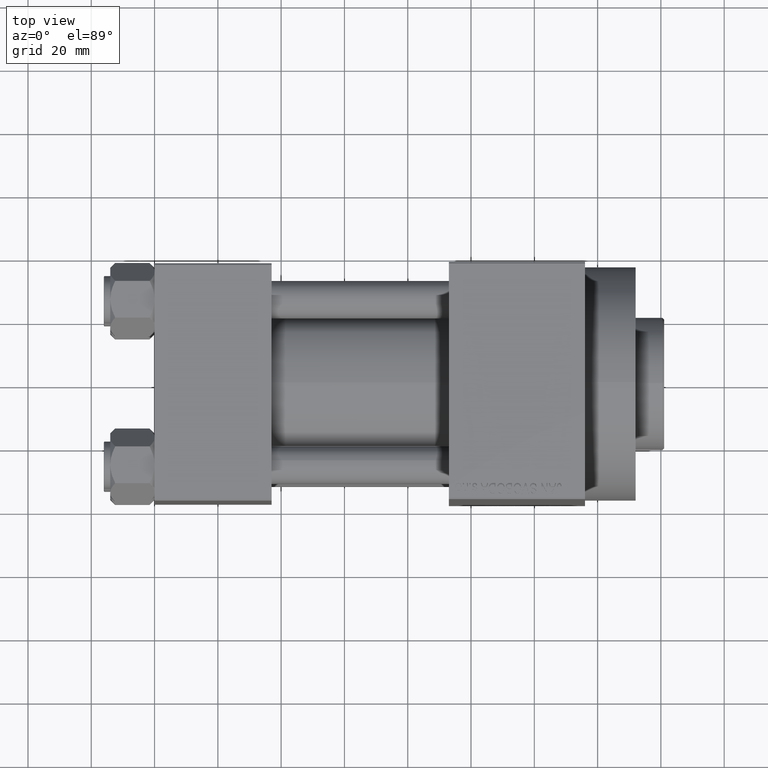
[diagram: clean part render]
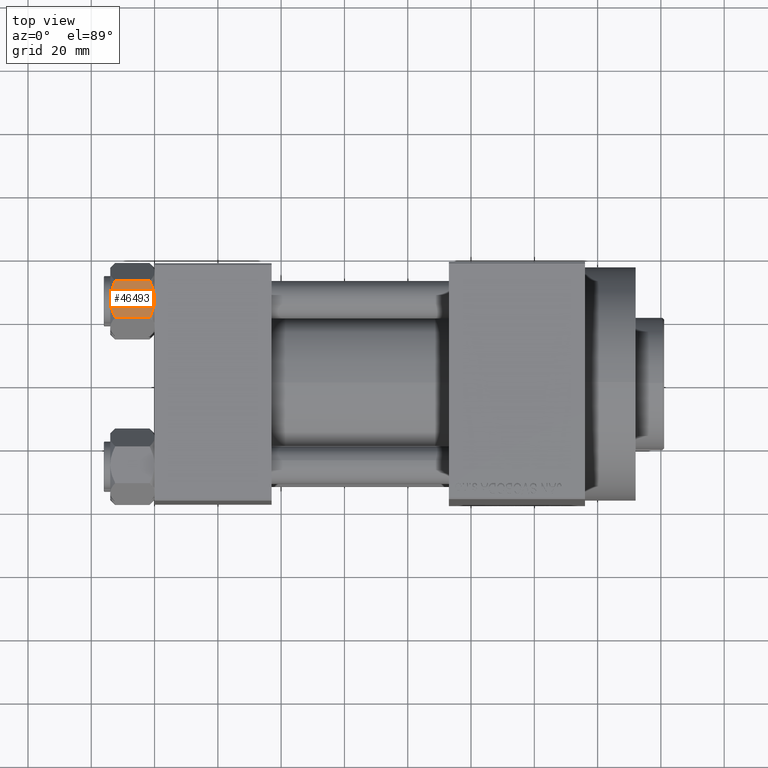
[diagram: same view with one face highlighted and labeled with its STEP entity id]
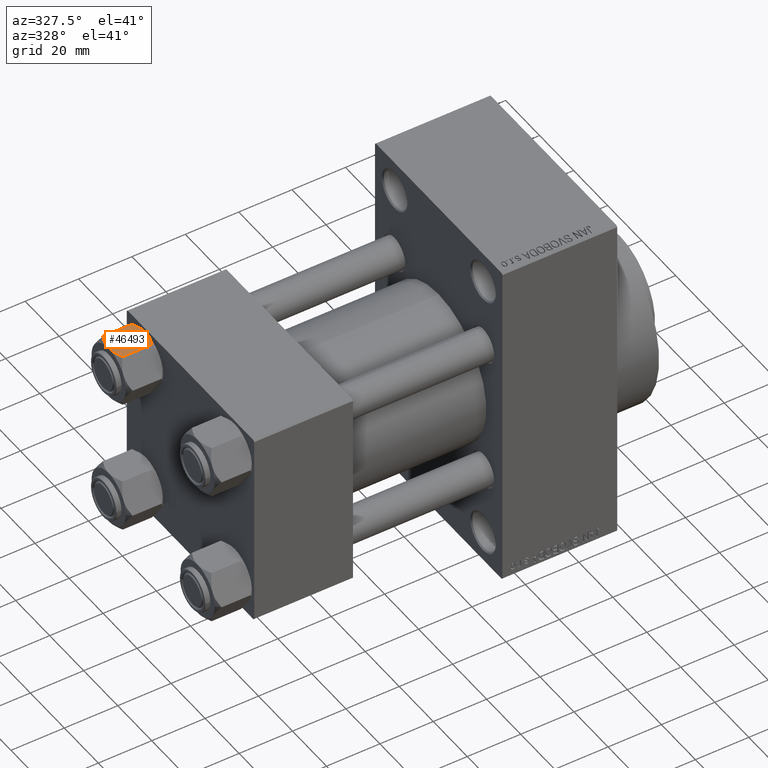
[diagram: same view with one face highlighted and labeled with its STEP entity id]
A machine part, top view. The second image highlights one B-rep face of the part: STEP entity #46493.
A second angle (auxiliary view) of the same face is appended — the face is thin or edge-on in the first view.
In plain terms, the highlighted planar face has unit normal (0, -0, -1).
Its self-contained STEP definition (entity closure, byte-faithful):
#2 = CARTESIAN_POINT ( 'NONE',  ( 3.958929922320421291, -10.06321519197517489, -13.25786014976460514 ) ) ;
#335 = FACE_OUTER_BOUND ( 'NONE', #30682, .T. ) ;
#1180 = CARTESIAN_POINT ( 'NONE',  ( -1.018274738099084864, -10.06321519197518022, -13.95177257919929303 ) ) ;
#1403 = DIRECTION ( 'NONE',  ( -0.000000000000000000, -0.000000000000000000, 1.000000000000000000 ) ) ;
#2218 = B_SPLINE_CURVE_WITH_KNOTS ( 'NONE', 3,
 ( #10968, #29367, #25545, #2, #22191, #43934, #39632, #25063 ),
 .UNSPECIFIED., .F., .F.,
 ( 4, 2, 2, 4 ),
 ( 0.01467889604968879158, 0.01619420351931634763, 0.01770951098894390369, 0.02074012592819901926 ),
 .UNSPECIFIED. ) ;
#2377 = CARTESIAN_POINT ( 'NONE',  ( 1.502314598737159623E-15, -10.06321519197518199, -14.00000000000000000 ) ) ;
#2653 = CARTESIAN_POINT ( 'NONE',  ( 4.908816193182381937, -10.06321519197517844, -1.106192904616003059 ) ) ;
#4062 = B_SPLINE_CURVE_WITH_KNOTS ( 'NONE', 3,
 ( #28183, #27958, #20776, #7100, #31080, #16505, #42525, #2653, #23671 ),
 .UNSPECIFIED., .F., .F.,
 ( 4, 2, 1, 2, 4 ),
 ( 0.02074012592819902273, 0.02149589804477578664, 0.02225167016135255402, 0.02376321439450608530, 0.02678630286081314441 ),
 .UNSPECIFIED. ) ;
#5058 = AXIS2_PLACEMENT_3D ( 'NONE', #29460, #28738, #40678 ) ;
#5692 = B_SPLINE_CURVE_WITH_KNOTS ( 'NONE', 3,
 ( #33160, #37709, #26486, #1180, #44875, #19304, #11425, #26713, #15005 ),
 .UNSPECIFIED., .F., .F.,
 ( 4, 2, 1, 2, 4 ),
 ( 0.02074012592819901926, 0.02149589804477578664, 0.02225167016135255055, 0.02376321439450608183, 0.02678630286081314094 ),
 .UNSPECIFIED. ) ;
#6780 = CARTESIAN_POINT ( 'NONE',  ( 5.810000000000000497, -10.06321519197517667, -12.44321519197518811 ) ) ;
#7100 = CARTESIAN_POINT ( 'NONE',  ( 1.018274738099083976, -10.06321519197517667, -0.04822742080070548110 ) ) ;
#7424 = VERTEX_POINT ( 'NONE', #23579 ) ;
#8303 = CARTESIAN_POINT ( 'NONE',  ( -1.020132157807625450, -10.06321519197517489, 4.052205619664572033E-15 ) ) ;
#10314 = CARTESIAN_POINT ( 'NONE',  ( -5.810000000000000497, -10.06321519197517844, -12.44321519197518633 ) ) ;
#10580 = PLANE ( 'NONE',  #5058 ) ;
#10968 = CARTESIAN_POINT ( 'NONE',  ( 5.810000000000000497, -10.06321519197517667, -12.44321519197518811 ) ) ;
#11425 = CARTESIAN_POINT ( 'NONE',  ( -3.960942496020602555, -10.06321519197517844, -13.28842716763896270 ) ) ;
#12470 = VECTOR ( 'NONE', #25857, 1000.000000000000000 ) ;
#12597 = CARTESIAN_POINT ( 'NONE',  ( -5.810000000000000497, -10.06321519197517844, -1.556784808024813893 ) ) ;
#13015 = EDGE_CURVE ( 'NONE', #20061, #32507, #29448, .T. ) ;
#13625 = ORIENTED_EDGE ( 'NONE', *, *, #36095, .F. ) ;
#13835 = B_SPLINE_CURVE_WITH_KNOTS ( 'NONE', 3,
 ( #12597, #41266, #34110, #37448, #22866, #41505, #8303, #30515 ),
 .UNSPECIFIED., .F., .F.,
 ( 4, 2, 2, 4 ),
 ( 0.01467889604968879332, 0.01619420351931635110, 0.01770951098894390716, 0.02074012592819902273 ),
 .UNSPECIFIED. ) ;
#13966 = EDGE_CURVE ( 'NONE', #24437, #32413, #2218, .T. ) ;
#15005 = CARTESIAN_POINT ( 'NONE',  ( -5.810000000000000497, -10.06321519197517844, -12.44321519197518633 ) ) ;
#16505 = CARTESIAN_POINT ( 'NONE',  ( 2.508586450168040827, -10.06321519197517667, -0.2975752632032254708 ) ) ;
#17812 = EDGE_CURVE ( 'NONE', #32507, #7424, #13835, .T. ) ;
#19304 = CARTESIAN_POINT ( 'NONE',  ( -2.508586450168039494, -10.06321519197517844, -13.70242473679677353 ) ) ;
#20061 = VERTEX_POINT ( 'NONE', #10314 ) ;
#20155 = ORIENTED_EDGE ( 'NONE', *, *, #17812, .F. ) ;
#20776 = CARTESIAN_POINT ( 'NONE',  ( 0.5112014849988879561, -10.06321519197517667, -0.009803979428909967431 ) ) ;
#20807 = VECTOR ( 'NONE', #1403, 1000.000000000000000 ) ;
#22191 = CARTESIAN_POINT ( 'NONE',  ( 3.474497094393254493, -10.06321519197517667, -13.42730390989572520 ) ) ;
#22866 = CARTESIAN_POINT ( 'NONE',  ( -3.474497094393254937, -10.06321519197517844, -0.5726960901042742469 ) ) ;
#23579 = CARTESIAN_POINT ( 'NONE',  ( 1.502314598737159623E-15, -10.06321519197518199, 0.000000000000000000 ) ) ;
#23671 = CARTESIAN_POINT ( 'NONE',  ( 5.810000000000000497, -10.06321519197517667, -1.556784808024811895 ) ) ;
#24247 = ORIENTED_EDGE ( 'NONE', *, *, #25582, .F. ) ;
#24437 = VERTEX_POINT ( 'NONE', #6780 ) ;
#25063 = CARTESIAN_POINT ( 'NONE',  ( 1.502314598737159623E-15, -10.06321519197518199, -14.00000000000000000 ) ) ;
#25545 = CARTESIAN_POINT ( 'NONE',  ( 4.900668367960795635, -10.06321519197517667, -12.87844331629023564 ) ) ;
#25582 = EDGE_CURVE ( 'NONE', #7424, #45572, #4062, .T. ) ;
#25857 = DIRECTION ( 'NONE',  ( -0.000000000000000000, -0.000000000000000000, 1.000000000000000000 ) ) ;
#26486 = CARTESIAN_POINT ( 'NONE',  ( -0.5112014849988885112, -10.06321519197517844, -13.99019602057109246 ) ) ;
#26701 = CARTESIAN_POINT ( 'NONE',  ( 5.810000000000000497, -10.06321519197517667, -14.00000000000000000 ) ) ;
#26713 = CARTESIAN_POINT ( 'NONE',  ( -4.908816193182382825, -10.06321519197518022, -12.89380709538399650 ) ) ;
#27089 = ORIENTED_EDGE ( 'NONE', *, *, #35093, .T. ) ;
#27115 = CARTESIAN_POINT ( 'NONE',  ( 5.810000000000000497, -10.06321519197517667, -1.556784808024811895 ) ) ;
#27958 = CARTESIAN_POINT ( 'NONE',  ( 0.2543996698847484361, -10.06321519197517667, 4.398642095091581661E-15 ) ) ;
#28183 = CARTESIAN_POINT ( 'NONE',  ( 1.502314598737159623E-15, -10.06321519197518199, 0.000000000000000000 ) ) ;
#28738 = DIRECTION ( 'NONE',  ( -1.492877345935290102E-16, 1.000000000000000000, 0.000000000000000000 ) ) ;
#29367 = CARTESIAN_POINT ( 'NONE',  ( 5.359707691559671972, -10.06321519197517667, -12.66836134619534882 ) ) ;
#29448 = LINE ( 'NONE', #44014, #12470 ) ;
#29460 = CARTESIAN_POINT ( 'NONE',  ( 5.810000000000000497, -10.06321519197517667, -14.00000000000000000 ) ) ;
#30515 = CARTESIAN_POINT ( 'NONE',  ( 1.502314598737159623E-15, -10.06321519197518199, 0.000000000000000000 ) ) ;
#30519 = LINE ( 'NONE', #26701, #20807 ) ;
#30682 = EDGE_LOOP ( 'NONE', ( #35000, #27089, #24247, #20155, #37141, #13625 ) ) ;
#31080 = CARTESIAN_POINT ( 'NONE',  ( 1.772424303831126258, -10.06321519197517311, -0.1338870921722345175 ) ) ;
#32413 = VERTEX_POINT ( 'NONE', #2377 ) ;
#32507 = VERTEX_POINT ( 'NONE', #33149 ) ;
#33149 = CARTESIAN_POINT ( 'NONE',  ( -5.810000000000000497, -10.06321519197517844, -1.556784808024813893 ) ) ;
#33160 = CARTESIAN_POINT ( 'NONE',  ( 1.502314598737159623E-15, -10.06321519197518199, -14.00000000000000000 ) ) ;
#34110 = CARTESIAN_POINT ( 'NONE',  ( -4.900668367960793859, -10.06321519197517667, -1.121556683709771463 ) ) ;
#35000 = ORIENTED_EDGE ( 'NONE', *, *, #13966, .F. ) ;
#35093 = EDGE_CURVE ( 'NONE', #24437, #45572, #30519, .T. ) ;
#36095 = EDGE_CURVE ( 'NONE', #32413, #20061, #5692, .T. ) ;
#37141 = ORIENTED_EDGE ( 'NONE', *, *, #13015, .F. ) ;
#37448 = CARTESIAN_POINT ( 'NONE',  ( -3.958929922320420403, -10.06321519197517844, -0.7421398502353970805 ) ) ;
#37709 = CARTESIAN_POINT ( 'NONE',  ( -0.2543996698847484916, -10.06321519197517844, -14.00000000000000888 ) ) ;
#39632 = CARTESIAN_POINT ( 'NONE',  ( 1.020132157807625228, -10.06321519197517667, -14.00000000000000533 ) ) ;
#40678 = DIRECTION ( 'NONE',  ( -1.000000000000000000, -1.492877345935290102E-16, 0.000000000000000000 ) ) ;
#41266 = CARTESIAN_POINT ( 'NONE',  ( -5.359707691559672860, -10.06321519197517844, -1.331638653804651851 ) ) ;
#41505 = CARTESIAN_POINT ( 'NONE',  ( -2.013954290287968352, -10.06321519197517844, -0.1570111679759963463 ) ) ;
#42525 = CARTESIAN_POINT ( 'NONE',  ( 3.960942496020604331, -10.06321519197518022, -0.7115728323610380768 ) ) ;
#43934 = CARTESIAN_POINT ( 'NONE',  ( 2.013954290287968796, -10.06321519197517667, -13.84298883202400532 ) ) ;
#44014 = CARTESIAN_POINT ( 'NONE',  ( -5.810000000000000497, -10.06321519197517844, -14.00000000000000000 ) ) ;
#44875 = CARTESIAN_POINT ( 'NONE',  ( -1.772424303831127590, -10.06321519197517667, -13.86611290782776784 ) ) ;
#45572 = VERTEX_POINT ( 'NONE', #27115 ) ;
#46493 = ADVANCED_FACE ( 'NONE', ( #335 ), #10580, .F. ) ;